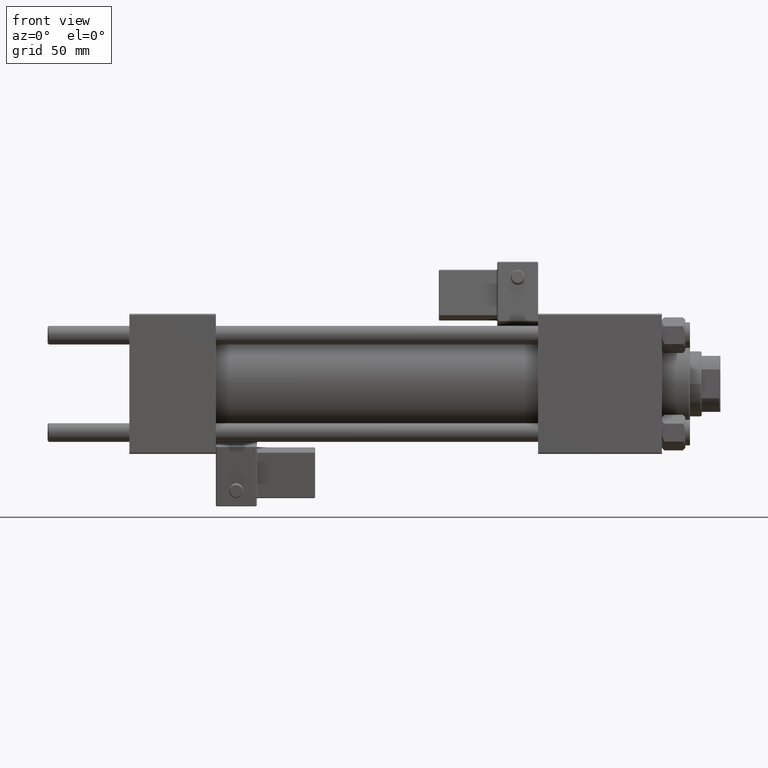
[diagram: clean part render]
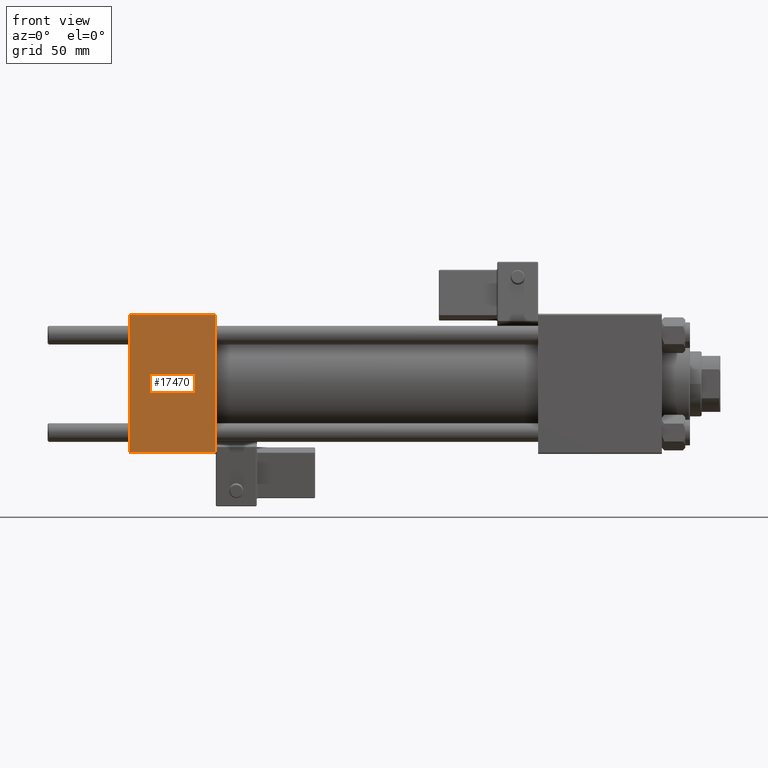
[diagram: same view with one face highlighted and labeled with its STEP entity id]
A machine part, front view. The second image highlights one B-rep face of the part: STEP entity #17470.
In plain terms, the highlighted planar face has unit normal (0, 1, 0).
Its self-contained STEP definition (entity closure, byte-faithful):
#161 = EDGE_CURVE ( 'NONE', #6117, #8095, #16476, .T. ) ;
#879 = EDGE_CURVE ( 'NONE', #7928, #46375, #18116, .T. ) ;
#1578 = VECTOR ( 'NONE', #10560, 1000.000000000000000 ) ;
#1909 = EDGE_CURVE ( 'NONE', #8095, #7928, #9371, .T. ) ;
#3841 = PLANE ( 'NONE',  #16786 ) ;
#3861 = DIRECTION ( 'NONE',  ( 1.000000000000000000, 0.000000000000000000, 0.000000000000000000 ) ) ;
#4605 = FACE_OUTER_BOUND ( 'NONE', #14962, .T. ) ;
#5321 = VECTOR ( 'NONE', #32827, 1000.000000000000000 ) ;
#5600 = ORIENTED_EDGE ( 'NONE', *, *, #1909, .T. ) ;
#6117 = VERTEX_POINT ( 'NONE', #45327 ) ;
#7928 = VERTEX_POINT ( 'NONE', #41440 ) ;
#8095 = VERTEX_POINT ( 'NONE', #18778 ) ;
#8818 = DIRECTION ( 'NONE',  ( 0.000000000000000000, -0.000000000000000000, 1.000000000000000000 ) ) ;
#8819 = DIRECTION ( 'NONE',  ( -1.000000000000000000, 0.000000000000000000, 0.000000000000000000 ) ) ;
#9081 = CARTESIAN_POINT ( 'NONE',  ( 37.00000000000000000, -30.00000000000000000, 29.49999999999999289 ) ) ;
#9371 = LINE ( 'NONE', #16752, #5321 ) ;
#9492 = VECTOR ( 'NONE', #3861, 1000.000000000000000 ) ;
#10560 = DIRECTION ( 'NONE',  ( 0.000000000000000000, 0.000000000000000000, -1.000000000000000000 ) ) ;
#14962 = EDGE_LOOP ( 'NONE', ( #5600, #44107, #22002, #47129 ) ) ;
#16476 = LINE ( 'NONE', #9081, #20400 ) ;
#16752 = CARTESIAN_POINT ( 'NONE',  ( 0.000000000000000000, -30.00000000000000000, 29.99999999999999289 ) ) ;
#16786 = AXIS2_PLACEMENT_3D ( 'NONE', #44903, #19914, #8818 ) ;
#17470 = ADVANCED_FACE ( 'NONE', ( #4605 ), #3841, .F. ) ;
#18116 = LINE ( 'NONE', #34187, #9492 ) ;
#18778 = CARTESIAN_POINT ( 'NONE',  ( 0.000000000000000000, -30.00000000000000000, 29.49999999999999289 ) ) ;
#19914 = DIRECTION ( 'NONE',  ( -0.000000000000000000, 1.000000000000000000, 0.000000000000000000 ) ) ;
#20400 = VECTOR ( 'NONE', #8819, 1000.000000000000000 ) ;
#22002 = ORIENTED_EDGE ( 'NONE', *, *, #44536, .F. ) ;
#32827 = DIRECTION ( 'NONE',  ( 0.000000000000000000, 0.000000000000000000, -1.000000000000000000 ) ) ;
#34187 = CARTESIAN_POINT ( 'NONE',  ( 37.00000000000000000, -30.00000000000000000, -29.50000000000001776 ) ) ;
#38751 = CARTESIAN_POINT ( 'NONE',  ( 37.00000000000000000, -30.00000000000000000, 29.99999999999999289 ) ) ;
#39528 = LINE ( 'NONE', #38751, #1578 ) ;
#41440 = CARTESIAN_POINT ( 'NONE',  ( 0.000000000000000000, -30.00000000000000000, -29.50000000000001776 ) ) ;
#41549 = CARTESIAN_POINT ( 'NONE',  ( 37.00000000000000000, -30.00000000000000000, -29.50000000000001776 ) ) ;
#44107 = ORIENTED_EDGE ( 'NONE', *, *, #879, .T. ) ;
#44536 = EDGE_CURVE ( 'NONE', #6117, #46375, #39528, .T. ) ;
#44903 = CARTESIAN_POINT ( 'NONE',  ( 37.00000000000000000, -30.00000000000000000, 29.99999999999999289 ) ) ;
#45327 = CARTESIAN_POINT ( 'NONE',  ( 37.00000000000000000, -30.00000000000000000, 29.49999999999999289 ) ) ;
#46375 = VERTEX_POINT ( 'NONE', #41549 ) ;
#47129 = ORIENTED_EDGE ( 'NONE', *, *, #161, .T. ) ;